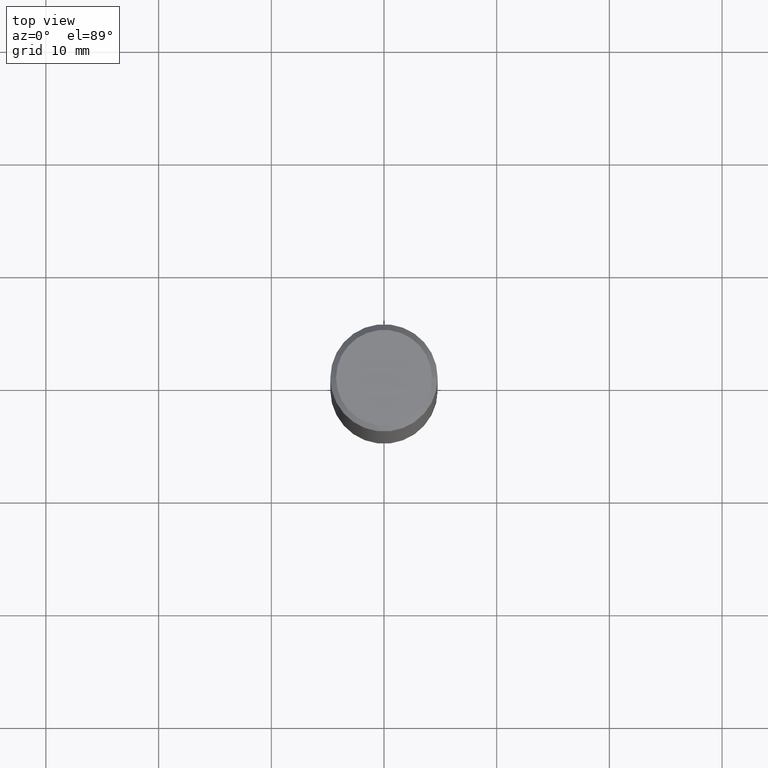
[diagram: clean part render]
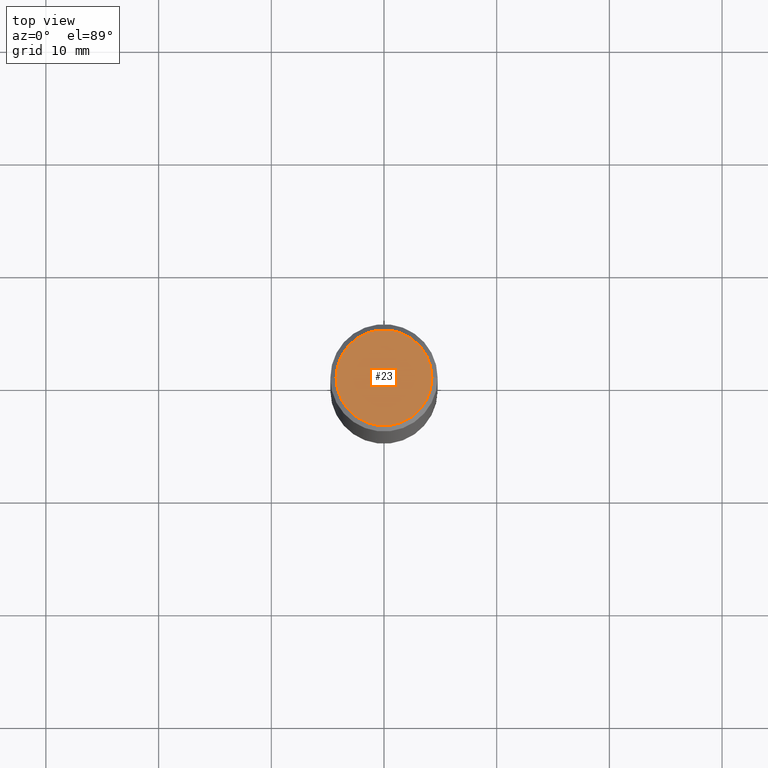
[diagram: same view with one face highlighted and labeled with its STEP entity id]
A machine part, top view. The second image highlights one B-rep face of the part: STEP entity #23.
In plain terms, the highlighted planar face has unit normal (0, -0, -1).
Its self-contained STEP definition (entity closure, byte-faithful):
#8 = CARTESIAN_POINT ( 'NONE',  ( -2.400858252971005371E-45, 3.427789291875028588E-31, 9.817578727230945633E-17 ) ) ;
#10 = DIRECTION ( 'NONE',  ( -2.445468806185136597E-29, 3.491481338843145583E-15, 1.000000000000000000 ) ) ;
#15 = VERTEX_POINT ( 'NONE', #322 ) ;
#23 = ADVANCED_FACE ( 'NONE', ( #119 ), #383, .F. ) ;
#28 = VERTEX_POINT ( 'NONE', #33 ) ;
#33 = CARTESIAN_POINT ( 'NONE',  ( -0.1674999999999999545, 1.204561061900880850E-15, 9.817578727230116097E-17 ) ) ;
#56 = CIRCLE ( 'NONE', #140, 0.1674999999999999545 ) ;
#62 = CARTESIAN_POINT ( 'NONE',  ( 1.169646248512449398E-15, 0.1674999999999999545, -5.357352306200719614E-16 ) ) ;
#67 = DIRECTION ( 'NONE',  ( 1.000000000000000000, -6.982962677686266711E-15, 4.879897708425057866E-29 ) ) ;
#72 = DIRECTION ( 'NONE',  ( -2.445468806185136597E-29, 3.491481338843145583E-15, 1.000000000000000000 ) ) ;
#87 = EDGE_LOOP ( 'NONE', ( #121, #410 ) ) ;
#119 = FACE_OUTER_BOUND ( 'NONE', #87, .T. ) ;
#121 = ORIENTED_EDGE ( 'NONE', *, *, #125, .T. ) ;
#125 = EDGE_CURVE ( 'NONE', #28, #15, #56, .T. ) ;
#140 = AXIS2_PLACEMENT_3D ( 'NONE', #8, #72, #174 ) ;
#155 = CIRCLE ( 'NONE', #378, 0.1674999999999999545 ) ;
#174 = DIRECTION ( 'NONE',  ( 1.000000000000000000, -6.982962677686266711E-15, 4.879897708425057866E-29 ) ) ;
#193 = DIRECTION ( 'NONE',  ( 2.438088387897960049E-29, -3.491481338843145188E-15, -1.000000000000000000 ) ) ;
#197 = EDGE_CURVE ( 'NONE', #15, #28, #155, .T. ) ;
#290 = AXIS2_PLACEMENT_3D ( 'NONE', #62, #193, #325 ) ;
#308 = CARTESIAN_POINT ( 'NONE',  ( -2.400858252971005371E-45, 3.427789291875028588E-31, 9.817578727230945633E-17 ) ) ;
#322 = CARTESIAN_POINT ( 'NONE',  ( 0.1674999999999999545, -1.252653207992878288E-15, 9.817578727231793659E-17 ) ) ;
#325 = DIRECTION ( 'NONE',  ( -1.000000000000000000, 6.982962677686265922E-15, -4.876176775795935793E-29 ) ) ;
#378 = AXIS2_PLACEMENT_3D ( 'NONE', #308, #10, #67 ) ;
#383 = PLANE ( 'NONE',  #290 ) ;
#410 = ORIENTED_EDGE ( 'NONE', *, *, #197, .T. ) ;